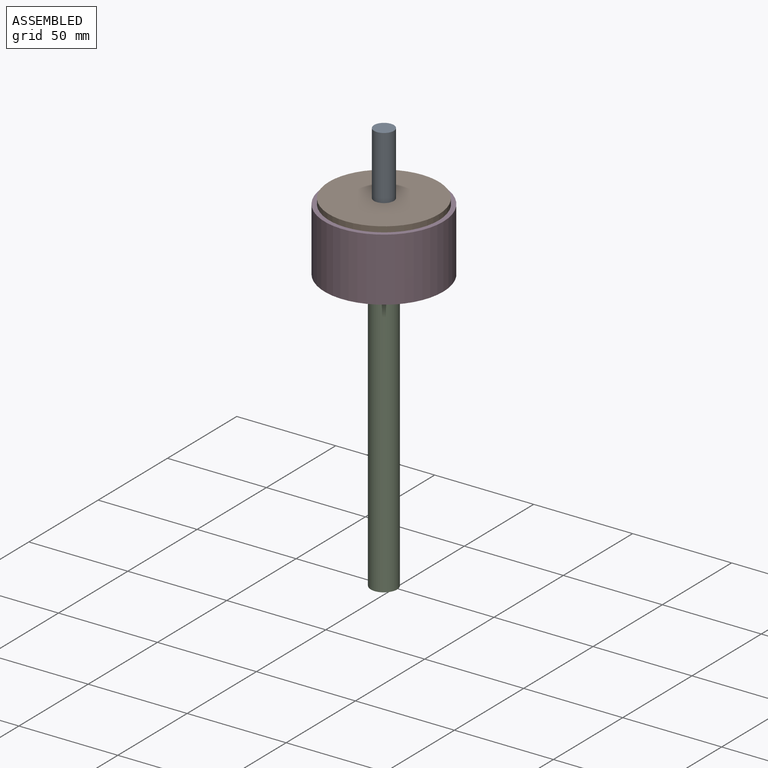
[diagram: assembled view]
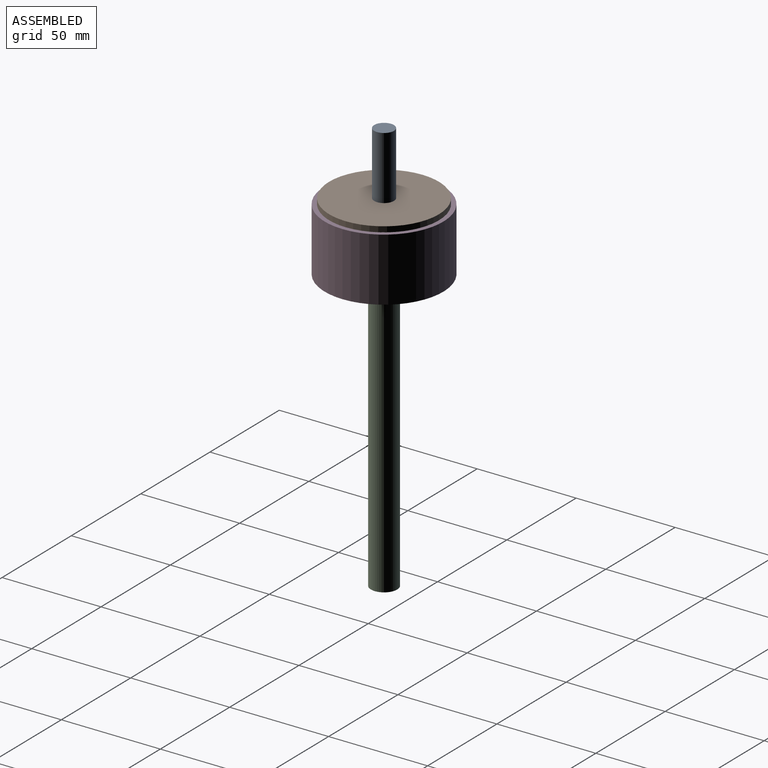
[diagram: assembled view, second angle]
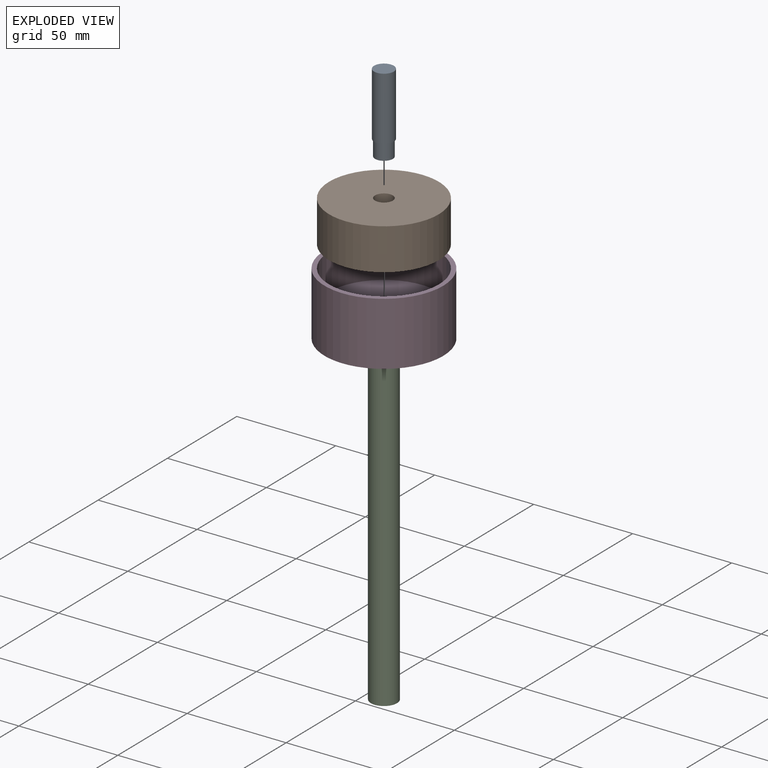
[diagram: exploded view]
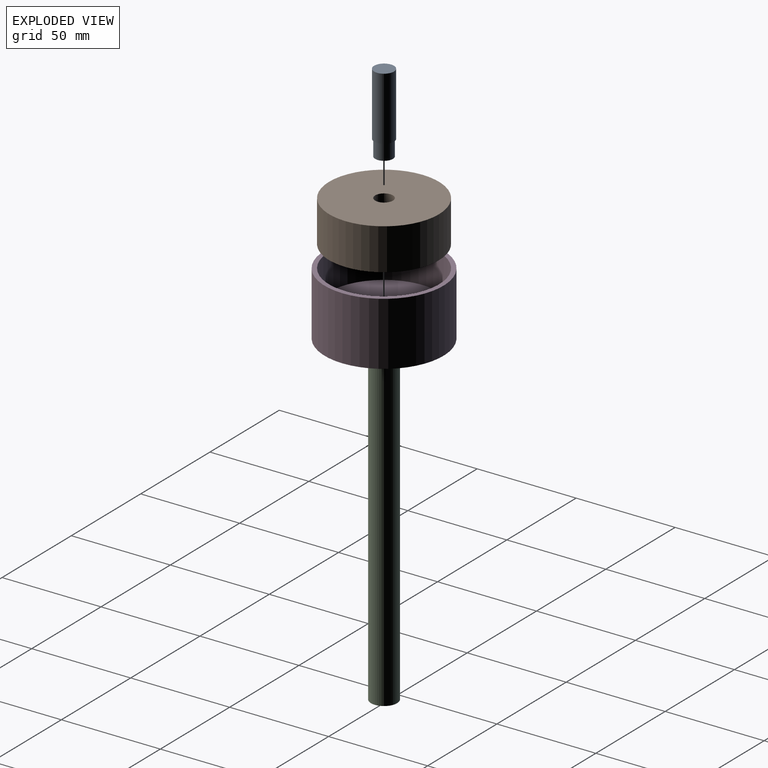
[diagram: exploded view, second angle]
ASSEMBLY  parts=4 mates=3
PART A: 5 faces, bbox 10x10x40 mm
  f0: cylinder r=5mm len=32mm, axis (0,0,-1), area 1005.3mm2, adj f1,f3
  f1: plane 10x10mm, normal (0,0,-1), area 78.5mm2, adj f0
  f2: cylinder r=4.5mm len=9mm, axis (0,0,1), area 226.2mm2, adj f3,f4
  f3: plane 10x10mm, normal (0,0,1), area 14.9mm2, adj f0,f2
  f4: plane 9x9mm, normal (0,0,1), area 63.6mm2, adj f2
PART B: 6 faces, bbox 55.5x55.5x21 mm
  f0: cone r=0mm half-angle=59deg, axis (0,0,1), area 123.3mm2, adj f4,f5
  f1: cylinder r=27.75mm len=55.5mm, axis (0,0,-1), area 3661.5mm2, adj f2,f3
  f2: plane 55.5x55.5mm, normal (0,0,1), area 2249.9mm2, adj f1,f4
  f3: plane 55.5x55.5mm, normal (0,0,-1), area 2355.6mm2, adj f1,f5
  f4: cylinder r=7.34mm len=14.68mm, axis (0,0,1), area 507.4mm2, adj f0,f2
  f5: cylinder r=4.5mm len=9mm, axis (0,0,-1), area 234.5mm2, adj f0,f3
PART C: 3 faces, bbox 13.2x13.2x156 mm
  f0: cylinder r=6.62mm len=156mm, axis (0,0,-1), area 6488.8mm2, adj f1,f2
  f1: plane 13.24x13.24mm, normal (0,0,1), area 137.7mm2, adj f0
  f2: plane 13.24x13.24mm, normal (0,0,-1), area 137.7mm2, adj f0
PART D: 6 faces, bbox 60x60x32 mm
  f0: cylinder r=30mm len=60mm, axis (0,0,-1), area 6031.9mm2, adj f1,f3
  f1: plane 60x60mm, normal (0,0,-1), area 2680.7mm2, adj f0,f5
  f2: cylinder r=27.75mm len=55.5mm, axis (0,0,-1), area 3182mm2, adj f3,f4
  f3: plane 60x60mm, normal (0,0,1), area 408.2mm2, adj f0,f2
  f4: plane 55.5x55.5mm, normal (0,0,1), area 2272.5mm2, adj f2,f5
  f5: cylinder r=6.83mm len=13.75mm, axis (0,0,-1), area 590.5mm2, adj f1,f4
PLACE A rot(axis=(1,0,0),180deg) t=(12.95,2.09,42.66)mm
PLACE B rot(axis=(1,0,0),180deg) t=(12.95,2.09,10.66)mm
PLACE C t=(12.95,2.09,-166.34)mm
PLACE D t=(12.95,2.09,-24.09)mm
MATE fastened A.f0 <-> B.f0  axis (0,0,-1) through (12.95,2.09,10.66)mm
MATE fastened C.f0 <-> D.f0  axis (0,0,1) through (12.95,2.09,-10.34)mm
MATE fastened B.f0 <-> D.f0  axis (0,0,-1) through (12.95,2.09,-10.34)mm
